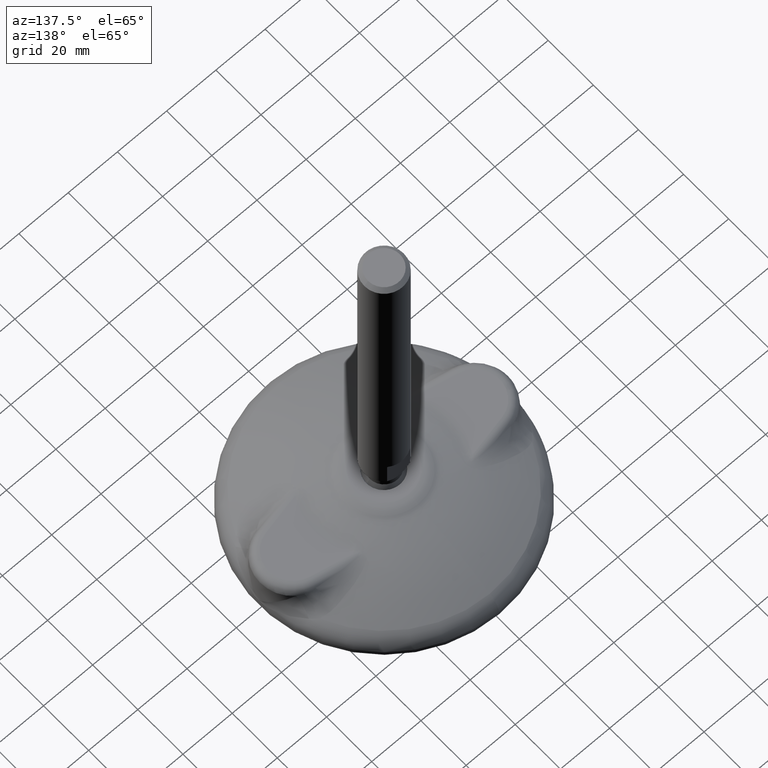
[diagram: clean part render]
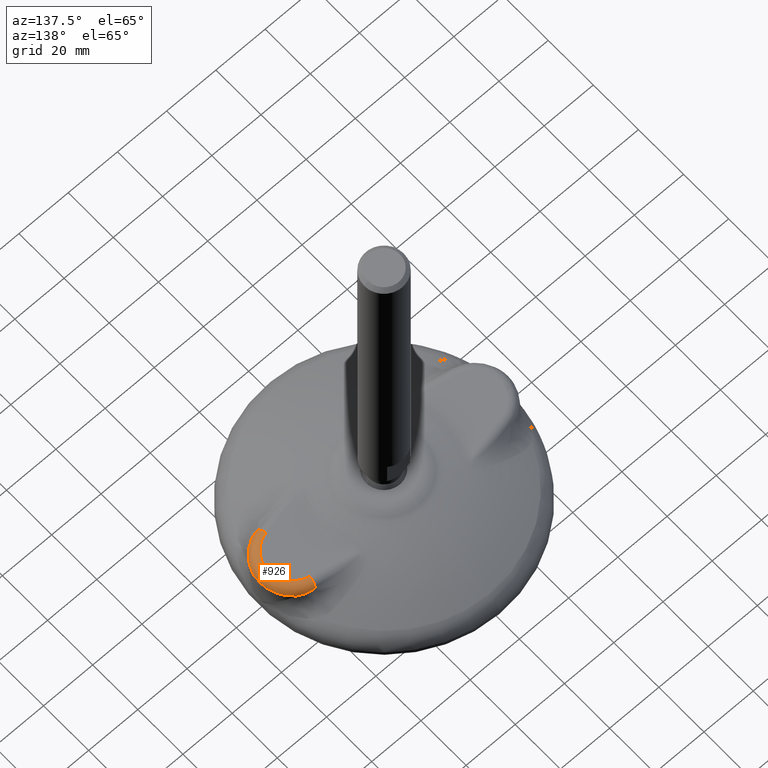
[diagram: same view with one face highlighted and labeled with its STEP entity id]
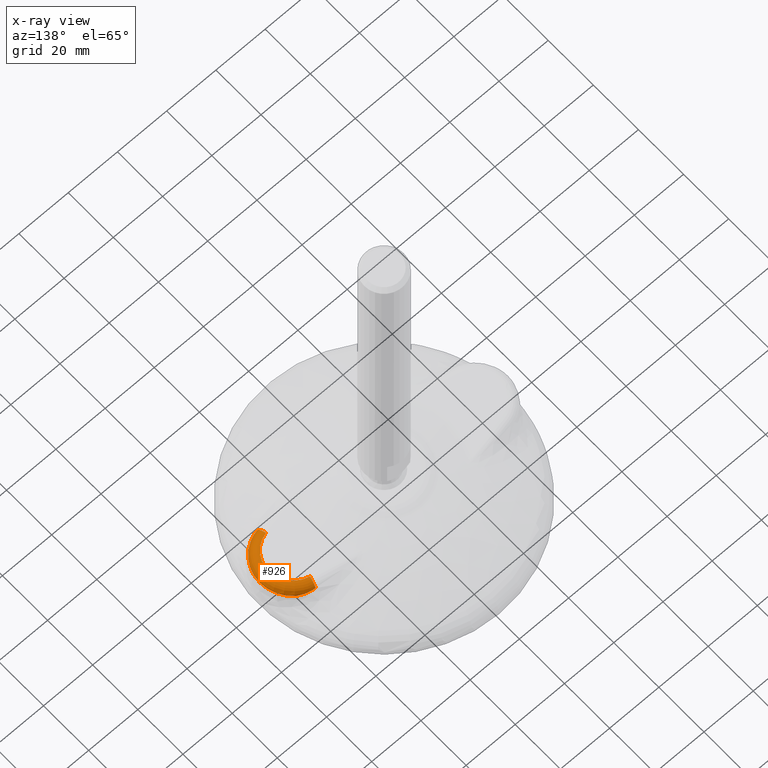
[diagram: x-ray of the same camera — body ghosted, the highlighted face saturated]
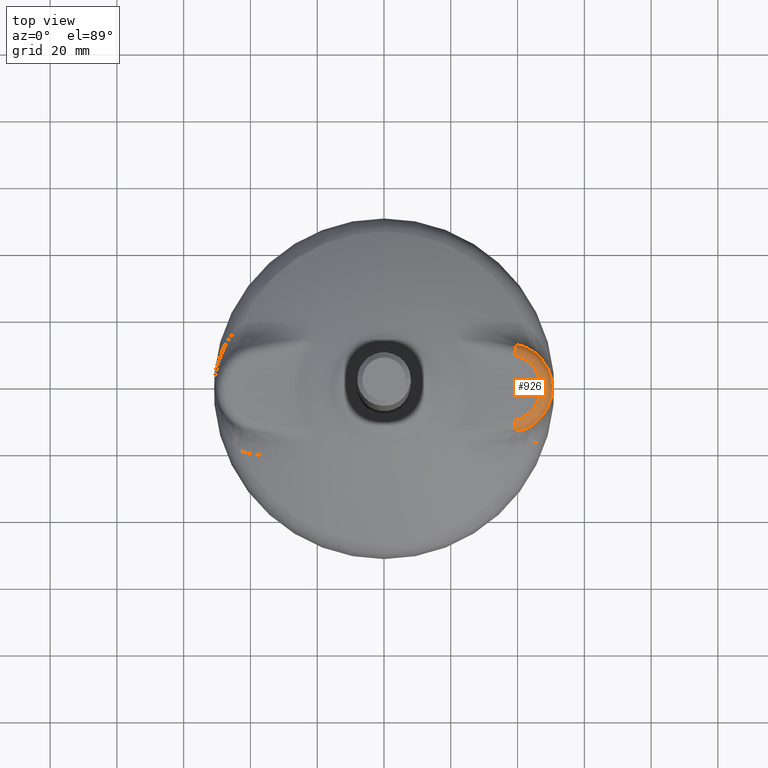
[diagram: same view with one face highlighted and labeled with its STEP entity id]
A machine part, auxiliary view. The second image highlights one B-rep face of the part: STEP entity #926.
The next image is the same camera in x-ray: the body ghosted, the highlighted face saturated — about 0% of this face is hidden behind the body in this view.
A second angle (top view) of the same face is appended — the face is thin or edge-on in the first view.
In plain terms, the highlighted toroidal blend (fillet) surface has major radius 9.9975 mm and minor (blend) radius 3.5 mm.
Its self-contained STEP definition (entity closure, byte-faithful):
#38=TOROIDAL_SURFACE('',#1038,9.99751007502379,3.5);
#79=B_SPLINE_CURVE_WITH_KNOTS('',3,(#4159,#4160,#4161,#4162,#4163,#4164,
#4165,#4166),.UNSPECIFIED.,.F.,.F.,(4,2,2,4),(0.,0.499999999999997,0.749999999999999,
1.),.UNSPECIFIED.);
#80=B_SPLINE_CURVE_WITH_KNOTS('',3,(#4167,#4168,#4169,#4170,#4171,#4172,
#4173,#4174,#4175,#4176,#4177,#4178,#4179),.UNSPECIFIED.,.F.,.F.,(4,3,3,
3,4),(0.,0.275275861479894,0.556591254266581,0.845321846803583,1.),
 .UNSPECIFIED.);
#81=B_SPLINE_CURVE_WITH_KNOTS('',3,(#4181,#4182,#4183,#4184,#4185,#4186,
#4187,#4188,#4189,#4190,#4191,#4192,#4193),.UNSPECIFIED.,.F.,.F.,(4,3,3,
3,4),(0.,0.288180764931367,0.571541113507456,0.845720962166843,0.999999999999996),
 .UNSPECIFIED.);
#82=B_SPLINE_CURVE_WITH_KNOTS('',3,(#4194,#4195,#4196,#4197,#4198,#4199,
#4200,#4201),.UNSPECIFIED.,.F.,.F.,(4,2,2,4),(0.,0.249999999999999,0.499999999999998,
1.),.UNSPECIFIED.);
#161=FACE_OUTER_BOUND('',#228,.T.);
#228=EDGE_LOOP('',(#642,#643,#644,#645,#646,#647,#648,#649));
#301=CIRCLE('',#1031,9.99751007502379);
#302=CIRCLE('',#1033,3.5);
#303=CIRCLE('',#1035,3.5);
#304=CIRCLE('',#1037,13.4953779695906);
#394=VERTEX_POINT('',#3390);
#397=VERTEX_POINT('',#3395);
#398=VERTEX_POINT('',#3399);
#399=VERTEX_POINT('',#3640);
#400=VERTEX_POINT('',#3896);
#401=VERTEX_POINT('',#3897);
#403=VERTEX_POINT('',#4158);
#404=VERTEX_POINT('',#4180);
#488=EDGE_CURVE('',#397,#394,#301,.T.);
#490=EDGE_CURVE('',#397,#398,#302,.T.);
#491=EDGE_CURVE('',#394,#399,#303,.T.);
#493=EDGE_CURVE('',#400,#401,#304,.T.);
#496=EDGE_CURVE('',#398,#403,#79,.T.);
#497=EDGE_CURVE('',#403,#401,#80,.T.);
#498=EDGE_CURVE('',#400,#404,#81,.T.);
#499=EDGE_CURVE('',#404,#399,#82,.T.);
#642=ORIENTED_EDGE('',*,*,#490,.T.);
#643=ORIENTED_EDGE('',*,*,#496,.T.);
#644=ORIENTED_EDGE('',*,*,#497,.T.);
#645=ORIENTED_EDGE('',*,*,#493,.F.);
#646=ORIENTED_EDGE('',*,*,#498,.T.);
#647=ORIENTED_EDGE('',*,*,#499,.T.);
#648=ORIENTED_EDGE('',*,*,#491,.F.);
#649=ORIENTED_EDGE('',*,*,#488,.F.);
#926=ADVANCED_FACE('',(#161),#38,.T.);
#1031=AXIS2_PLACEMENT_3D('',#3397,#1190,#1191);
#1033=AXIS2_PLACEMENT_3D('',#3638,#1194,#1195);
#1035=AXIS2_PLACEMENT_3D('',#3641,#1198,#1199);
#1037=AXIS2_PLACEMENT_3D('',#3898,#1202,#1203);
#1038=AXIS2_PLACEMENT_3D('',#4157,#1204,#1205);
#1190=DIRECTION('center_axis',(0.,0.,1.));
#1191=DIRECTION('ref_axis',(1.,0.,0.));
#1194=DIRECTION('center_axis',(0.978147600734719,0.207911690813463,0.));
#1195=DIRECTION('ref_axis',(-0.207911690813463,0.978147600734719,0.));
#1198=DIRECTION('center_axis',(-0.978147600734718,0.207911690813467,0.));
#1199=DIRECTION('ref_axis',(-0.207911690813467,-0.978147600734718,0.));
#1202=DIRECTION('center_axis',(0.,0.,-1.));
#1203=DIRECTION('ref_axis',(-1.,0.,0.));
#1204=DIRECTION('center_axis',(0.,0.,1.));
#1205=DIRECTION('ref_axis',(1.,0.,0.));
#3390=CARTESIAN_POINT('',(38.9785992236228,9.77904049320544,18.));
#3395=CARTESIAN_POINT('',(38.9785992236228,-9.77904049320579,18.));
#3397=CARTESIAN_POINT('Origin',(36.9,-8.645326E-14,18.));
#3399=CARTESIAN_POINT('',(39.6508092109383,-12.9415398394908,15.840422178905));
#3638=CARTESIAN_POINT('Origin',(38.9785992236228,-9.7790404932058,14.5));
#3640=CARTESIAN_POINT('',(39.6508092109384,12.9415398394904,15.840422178905));
#3641=CARTESIAN_POINT('Origin',(38.9785992236229,9.77904049320544,14.5));
#3896=CARTESIAN_POINT('',(45.316172805629,10.5495621638008,14.6221482384588));
#3897=CARTESIAN_POINT('',(45.3161728056289,-10.5495621638012,14.6221482384588));
#3898=CARTESIAN_POINT('Origin',(36.9,-8.645326E-14,14.6221482384588));
#4157=CARTESIAN_POINT('Origin',(36.9,-8.645326E-14,14.5));
#4158=CARTESIAN_POINT('',(43.177831636212,-11.8856961593076,15.1222012714982));
#4159=CARTESIAN_POINT('Ctrl Pts',(39.6508092109383,-12.9415398394908,15.840422178905));
#4160=CARTESIAN_POINT('Ctrl Pts',(40.2643685165308,-12.8651052942947,15.7130619363635));
#4161=CARTESIAN_POINT('Ctrl Pts',(40.8648455038295,-12.737253619143,15.5894218539684));
#4162=CARTESIAN_POINT('Ctrl Pts',(41.7471036689199,-12.4725739153158,15.4096843504496));
#4163=CARTESIAN_POINT('Ctrl Pts',(42.0380958107095,-12.3721310075678,15.3507259515978));
#4164=CARTESIAN_POINT('Ctrl Pts',(42.6138898258825,-12.1467791847383,15.2347493119755));
#4165=CARTESIAN_POINT('Ctrl Pts',(42.8986295414375,-12.0218185054616,15.177745489979));
#4166=CARTESIAN_POINT('Ctrl Pts',(43.177831636212,-11.8856961593075,15.1222012714984));
#4167=CARTESIAN_POINT('Ctrl Pts',(43.177831636212,-11.8856961593076,15.1222012714982));
#4168=CARTESIAN_POINT('Ctrl Pts',(43.3876872961683,-11.7833830129466,15.0804527715975));
#4169=CARTESIAN_POINT('Ctrl Pts',(43.5937658085499,-11.6756013449993,15.0372839717314));
#4170=CARTESIAN_POINT('Ctrl Pts',(43.7961037607131,-11.5622684857308,14.992921313075));
#4171=CARTESIAN_POINT('Ctrl Pts',(44.0028809920419,-11.4464491122144,14.9475853410872));
#4172=CARTESIAN_POINT('Ctrl Pts',(44.2057518788379,-11.3248316682954,14.9010026022965));
#4173=CARTESIAN_POINT('Ctrl Pts',(44.4047122152653,-11.1972962285597,14.8534293414563));
#4174=CARTESIAN_POINT('Ctrl Pts',(44.6089169523719,-11.0663990788532,14.804602095797));
#4175=CARTESIAN_POINT('Ctrl Pts',(44.8090024463798,-10.929267263302,14.7547315622174));
#4176=CARTESIAN_POINT('Ctrl Pts',(45.0049164956474,-10.7857473288975,14.7041085132332));
#4177=CARTESIAN_POINT('Ctrl Pts',(45.1098711631099,-10.7088611278008,14.6769888386007));
#4178=CARTESIAN_POINT('Ctrl Pts',(45.2136278319552,-10.630141231261,14.6496534169837));
#4179=CARTESIAN_POINT('Ctrl Pts',(45.3161728056289,-10.5495621638012,14.6221482384588));
#4180=CARTESIAN_POINT('',(43.1778316362121,11.8856961593072,15.1222012714982));
#4181=CARTESIAN_POINT('Ctrl Pts',(45.316172805629,10.5495621638008,14.6221482384588));
#4182=CARTESIAN_POINT('Ctrl Pts',(45.1251213329907,10.699688971098,14.6733931183793));
#4183=CARTESIAN_POINT('Ctrl Pts',(44.9298667241049,10.8433631753835,14.7240481551467));
#4184=CARTESIAN_POINT('Ctrl Pts',(44.7304865208857,10.9807462828024,14.7738182305149));
#4185=CARTESIAN_POINT('Ctrl Pts',(44.53444136188,11.115831375022,14.8227557989482));
#4186=CARTESIAN_POINT('Ctrl Pts',(44.3344073610006,11.2448345977293,14.8708375657374));
#4187=CARTESIAN_POINT('Ctrl Pts',(44.130413228158,11.3678918807515,14.9177942792286));
#4188=CARTESIAN_POINT('Ctrl Pts',(43.9330282349814,11.486962270822,14.9632296574078));
#4189=CARTESIAN_POINT('Ctrl Pts',(43.7319353520911,11.6004662560266,15.0076116327799));
#4190=CARTESIAN_POINT('Ctrl Pts',(43.5271205558749,11.7085030109948,15.0507088207011));
#4191=CARTESIAN_POINT('Ctrl Pts',(43.4118727364282,11.7692945195196,15.0749592997874));
#4192=CARTESIAN_POINT('Ctrl Pts',(43.2954457601961,11.8283545032194,15.0988032214075));
#4193=CARTESIAN_POINT('Ctrl Pts',(43.1778316362122,11.8856961593071,15.1222012714982));
#4194=CARTESIAN_POINT('Ctrl Pts',(43.1778316362122,11.8856961593071,15.1222012714984));
#4195=CARTESIAN_POINT('Ctrl Pts',(42.8986295414376,12.0218185054612,15.1777454899789));
#4196=CARTESIAN_POINT('Ctrl Pts',(42.6138898258825,12.1467791847379,15.2347493119755));
#4197=CARTESIAN_POINT('Ctrl Pts',(42.0380958107095,12.3721310075674,15.3507259515978));
#4198=CARTESIAN_POINT('Ctrl Pts',(41.74710366892,12.4725739153154,15.4096843504496));
#4199=CARTESIAN_POINT('Ctrl Pts',(40.8648455038295,12.7372536191426,15.5894218539684));
#4200=CARTESIAN_POINT('Ctrl Pts',(40.2643685165309,12.8651052942943,15.7130619363635));
#4201=CARTESIAN_POINT('Ctrl Pts',(39.6508092109384,12.9415398394904,15.840422178905));